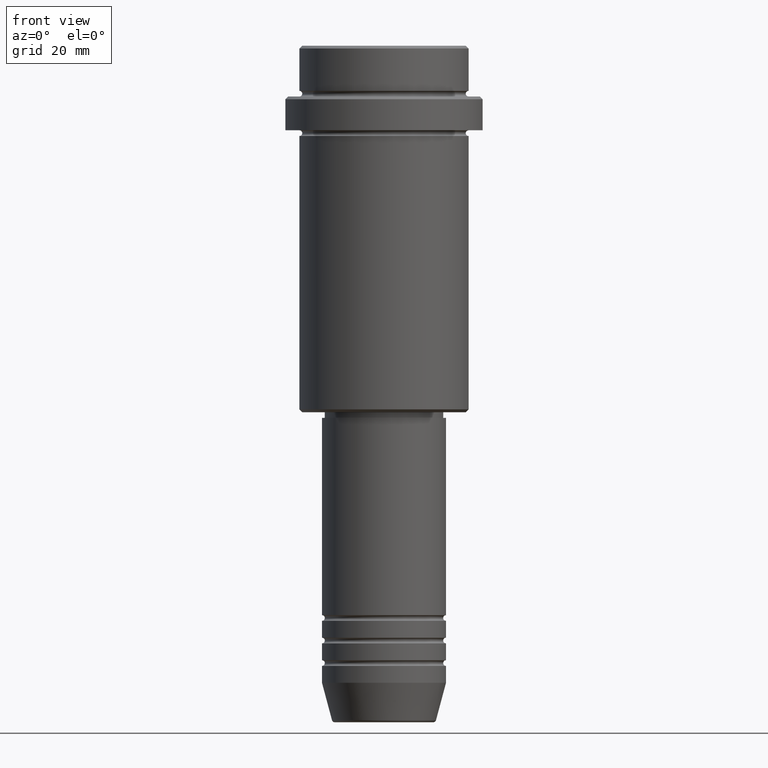
[diagram: clean part render]
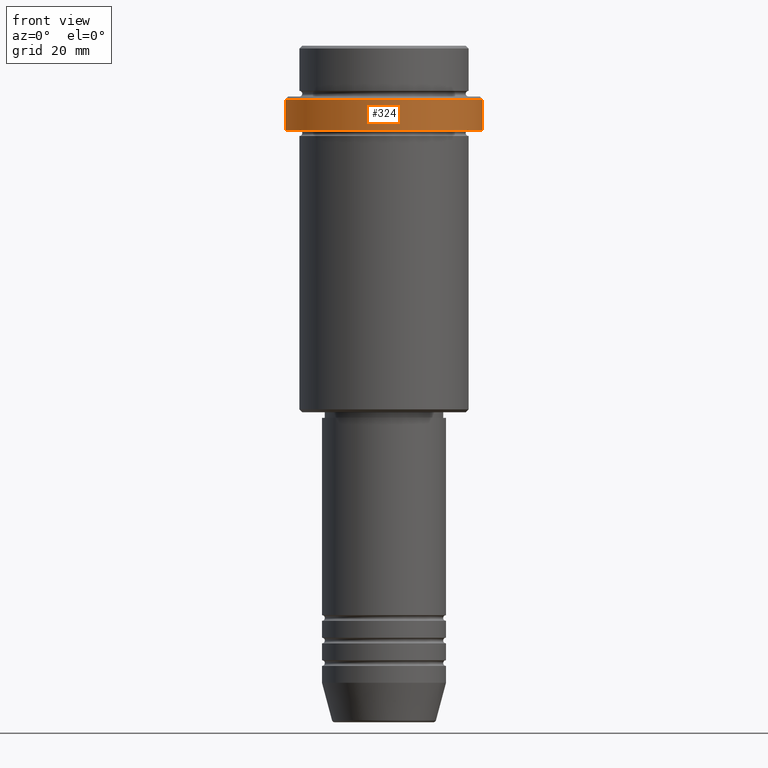
[diagram: same view with one face highlighted and labeled with its STEP entity id]
A machine part, front view. The second image highlights one B-rep face of the part: STEP entity #324.
In plain terms, the highlighted cylindrical surface (partial cylindrical patch) has radius 17.5 mm, axis along (-0, -0, 1).
Its self-contained STEP definition (entity closure, byte-faithful):
#23 = CARTESIAN_POINT ( 'NONE',  ( -17.50000000000000000, 2.143131898507868248E-15, -9.500000000000000000 ) ) ;
#85 = EDGE_CURVE ( 'NONE', #471, #456, #355, .T. ) ;
#96 = CARTESIAN_POINT ( 'NONE',  ( 0.000000000000000000, 0.000000000000000000, -15.00000000000000000 ) ) ;
#106 = CIRCLE ( 'NONE', #1408, 17.50000000000000000 ) ;
#120 = EDGE_CURVE ( 'NONE', #736, #433, #1337, .T. ) ;
#170 = FACE_OUTER_BOUND ( 'NONE', #746, .T. ) ;
#174 = DIRECTION ( 'NONE',  ( -0.000000000000000000, -0.000000000000000000, 1.000000000000000000 ) ) ;
#187 = DIRECTION ( 'NONE',  ( 1.000000000000000000, 0.000000000000000000, 0.000000000000000000 ) ) ;
#324 = ADVANCED_FACE ( 'NONE', ( #170 ), #983, .T. ) ;
#352 = AXIS2_PLACEMENT_3D ( 'NONE', #733, #174, #187 ) ;
#355 = LINE ( 'NONE', #432, #930 ) ;
#432 = CARTESIAN_POINT ( 'NONE',  ( 17.50000000000000000, 0.000000000000000000, 0.000000000000000000 ) ) ;
#433 = VERTEX_POINT ( 'NONE', #23 ) ;
#456 = VERTEX_POINT ( 'NONE', #636 ) ;
#471 = VERTEX_POINT ( 'NONE', #847 ) ;
#550 = ORIENTED_EDGE ( 'NONE', *, *, #85, .T. ) ;
#569 = ORIENTED_EDGE ( 'NONE', *, *, #575, .T. ) ;
#575 = EDGE_CURVE ( 'NONE', #736, #471, #106, .T. ) ;
#636 = CARTESIAN_POINT ( 'NONE',  ( 17.50000000000000000, 0.000000000000000000, -9.500000000000000000 ) ) ;
#655 = DIRECTION ( 'NONE',  ( 1.000000000000000000, 0.000000000000000000, 0.000000000000000000 ) ) ;
#667 = CARTESIAN_POINT ( 'NONE',  ( -17.50000000000000000, 2.143131898507868248E-15, -15.00000000000000000 ) ) ;
#670 = CARTESIAN_POINT ( 'NONE',  ( -17.50000000000000000, 2.143131898507868248E-15, 0.000000000000000000 ) ) ;
#719 = VECTOR ( 'NONE', #799, 1000.000000000000000 ) ;
#727 = CARTESIAN_POINT ( 'NONE',  ( 0.000000000000000000, 0.000000000000000000, -9.500000000000000000 ) ) ;
#733 = CARTESIAN_POINT ( 'NONE',  ( 0.000000000000000000, 0.000000000000000000, 0.000000000000000000 ) ) ;
#736 = VERTEX_POINT ( 'NONE', #667 ) ;
#746 = EDGE_LOOP ( 'NONE', ( #1336, #569, #550, #1162 ) ) ;
#799 = DIRECTION ( 'NONE',  ( -0.000000000000000000, -0.000000000000000000, 1.000000000000000000 ) ) ;
#823 = EDGE_CURVE ( 'NONE', #456, #433, #1133, .T. ) ;
#847 = CARTESIAN_POINT ( 'NONE',  ( 17.50000000000000000, 0.000000000000000000, -15.00000000000000000 ) ) ;
#886 = AXIS2_PLACEMENT_3D ( 'NONE', #727, #1403, #927 ) ;
#927 = DIRECTION ( 'NONE',  ( 1.000000000000000000, 0.000000000000000000, 0.000000000000000000 ) ) ;
#930 = VECTOR ( 'NONE', #1209, 1000.000000000000000 ) ;
#983 = CYLINDRICAL_SURFACE ( 'NONE', #352, 17.50000000000000000 ) ;
#1133 = CIRCLE ( 'NONE', #886, 17.50000000000000000 ) ;
#1162 = ORIENTED_EDGE ( 'NONE', *, *, #823, .T. ) ;
#1194 = DIRECTION ( 'NONE',  ( -0.000000000000000000, -0.000000000000000000, 1.000000000000000000 ) ) ;
#1209 = DIRECTION ( 'NONE',  ( -0.000000000000000000, -0.000000000000000000, 1.000000000000000000 ) ) ;
#1336 = ORIENTED_EDGE ( 'NONE', *, *, #120, .F. ) ;
#1337 = LINE ( 'NONE', #670, #719 ) ;
#1403 = DIRECTION ( 'NONE',  ( 0.000000000000000000, 0.000000000000000000, -1.000000000000000000 ) ) ;
#1408 = AXIS2_PLACEMENT_3D ( 'NONE', #96, #1194, #655 ) ;